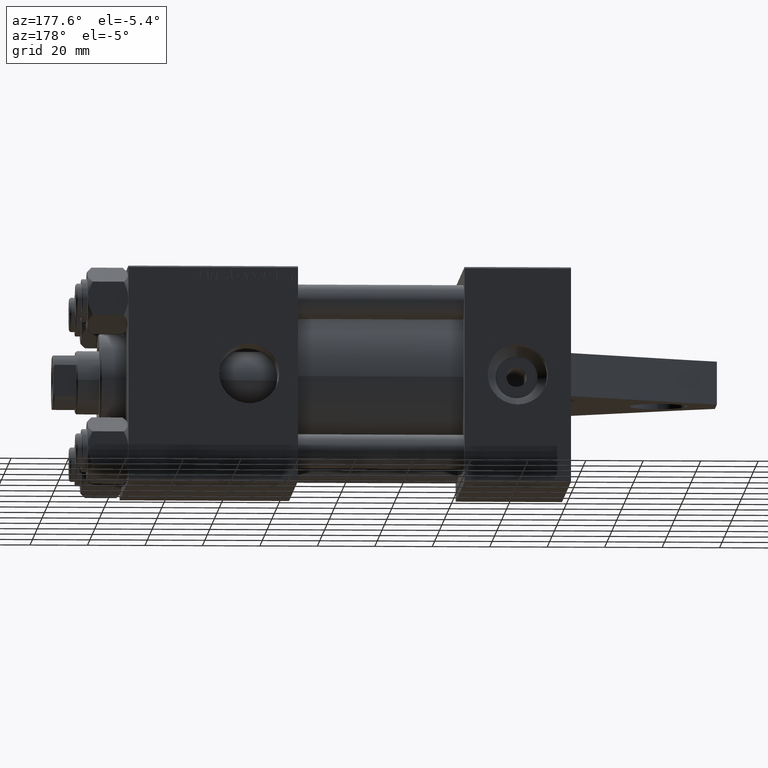
[diagram: clean part render]
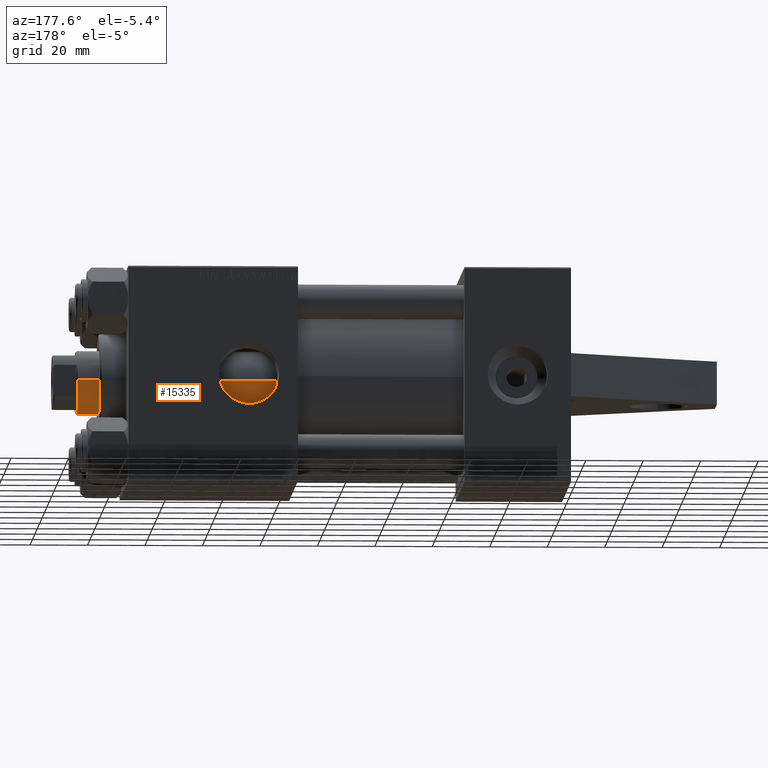
[diagram: same view with one face highlighted and labeled with its STEP entity id]
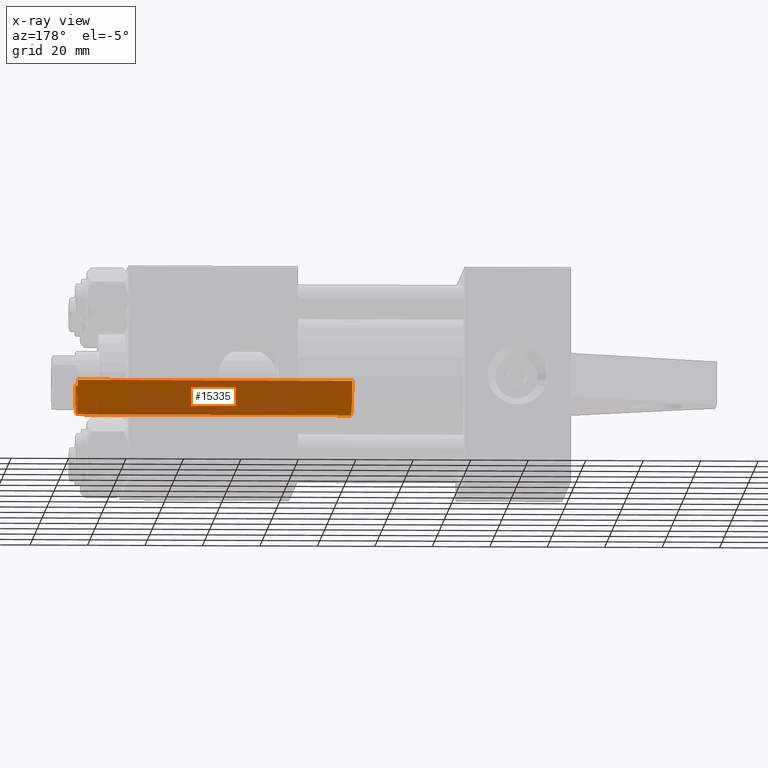
[diagram: x-ray of the same camera — body ghosted, the highlighted face saturated]
A machine part, auxiliary view. The second image highlights one B-rep face of the part: STEP entity #15335.
The next image is the same camera in x-ray: the body ghosted, the highlighted face saturated — about 32% of this face is hidden behind the body in this view.
In plain terms, the highlighted cylindrical surface (edge-blend (fillet) strip) has radius 11 mm, axis along (-1, -0, 0).
Its self-contained STEP definition (entity closure, byte-faithful):
#368 = VECTOR ( 'NONE', #3287, 1000.000000000000000 ) ;
#559 = CARTESIAN_POINT ( 'NONE',  ( -11.00000000000000000, 0.000000000000000000, 133.5000000000000000 ) ) ;
#643 = VECTOR ( 'NONE', #31116, 1000.000000000000000 ) ;
#3287 = DIRECTION ( 'NONE',  ( -0.000000000000000000, -0.000000000000000000, -1.000000000000000000 ) ) ;
#4236 = CIRCLE ( 'NONE', #30251, 11.00000000000000000 ) ;
#4348 = FACE_OUTER_BOUND ( 'NONE', #34589, .T. ) ;
#4369 = CIRCLE ( 'NONE', #14772, 11.00000000000000000 ) ;
#5397 = ORIENTED_EDGE ( 'NONE', *, *, #16451, .T. ) ;
#6046 = EDGE_CURVE ( 'NONE', #36967, #31416, #4236, .T. ) ;
#9917 = EDGE_CURVE ( 'NONE', #37576, #31416, #23901, .T. ) ;
#10085 = DIRECTION ( 'NONE',  ( 1.000000000000000000, 0.000000000000000000, 0.000000000000000000 ) ) ;
#10224 = EDGE_CURVE ( 'NONE', #37576, #20361, #4369, .T. ) ;
#10633 = CYLINDRICAL_SURFACE ( 'NONE', #10730, 11.00000000000000000 ) ;
#10730 = AXIS2_PLACEMENT_3D ( 'NONE', #28552, #18550, #35539 ) ;
#11503 = CARTESIAN_POINT ( 'NONE',  ( 0.000000000000000000, 0.000000000000000000, 38.00000000000000000 ) ) ;
#11739 = DIRECTION ( 'NONE',  ( 0.000000000000000000, 0.000000000000000000, 1.000000000000000000 ) ) ;
#14772 = AXIS2_PLACEMENT_3D ( 'NONE', #35007, #20811, #10085 ) ;
#15335 = ADVANCED_FACE ( 'NONE', ( #4348 ), #10633, .T. ) ;
#16379 = CARTESIAN_POINT ( 'NONE',  ( 11.00000000000000000, 1.347111479062088405E-15, 38.00000000000000000 ) ) ;
#16451 = EDGE_CURVE ( 'NONE', #20361, #36967, #24242, .T. ) ;
#18550 = DIRECTION ( 'NONE',  ( -0.000000000000000000, -0.000000000000000000, -1.000000000000000000 ) ) ;
#20361 = VERTEX_POINT ( 'NONE', #33274 ) ;
#20407 = CARTESIAN_POINT ( 'NONE',  ( -11.00000000000000000, 0.000000000000000000, 134.0000000000000000 ) ) ;
#20811 = DIRECTION ( 'NONE',  ( 0.000000000000000000, 0.000000000000000000, -1.000000000000000000 ) ) ;
#21916 = ORIENTED_EDGE ( 'NONE', *, *, #6046, .T. ) ;
#22079 = ORIENTED_EDGE ( 'NONE', *, *, #9917, .F. ) ;
#22375 = CARTESIAN_POINT ( 'NONE',  ( -11.00000000000000000, 0.000000000000000000, 38.00000000000000000 ) ) ;
#23901 = LINE ( 'NONE', #20407, #643 ) ;
#24242 = LINE ( 'NONE', #31233, #368 ) ;
#28552 = CARTESIAN_POINT ( 'NONE',  ( 0.000000000000000000, 0.000000000000000000, 134.0000000000000000 ) ) ;
#30251 = AXIS2_PLACEMENT_3D ( 'NONE', #11503, #11739, #40146 ) ;
#31116 = DIRECTION ( 'NONE',  ( -0.000000000000000000, -0.000000000000000000, -1.000000000000000000 ) ) ;
#31233 = CARTESIAN_POINT ( 'NONE',  ( 11.00000000000000000, 1.347111479062088405E-15, 134.0000000000000000 ) ) ;
#31416 = VERTEX_POINT ( 'NONE', #22375 ) ;
#33274 = CARTESIAN_POINT ( 'NONE',  ( 11.00000000000000000, 1.347111479062088405E-15, 133.5000000000000000 ) ) ;
#34589 = EDGE_LOOP ( 'NONE', ( #38502, #5397, #21916, #22079 ) ) ;
#35007 = CARTESIAN_POINT ( 'NONE',  ( 0.000000000000000000, 0.000000000000000000, 133.5000000000000000 ) ) ;
#35539 = DIRECTION ( 'NONE',  ( -1.000000000000000000, 0.000000000000000000, 0.000000000000000000 ) ) ;
#36967 = VERTEX_POINT ( 'NONE', #16379 ) ;
#37576 = VERTEX_POINT ( 'NONE', #559 ) ;
#38502 = ORIENTED_EDGE ( 'NONE', *, *, #10224, .T. ) ;
#40146 = DIRECTION ( 'NONE',  ( 1.000000000000000000, 0.000000000000000000, 0.000000000000000000 ) ) ;